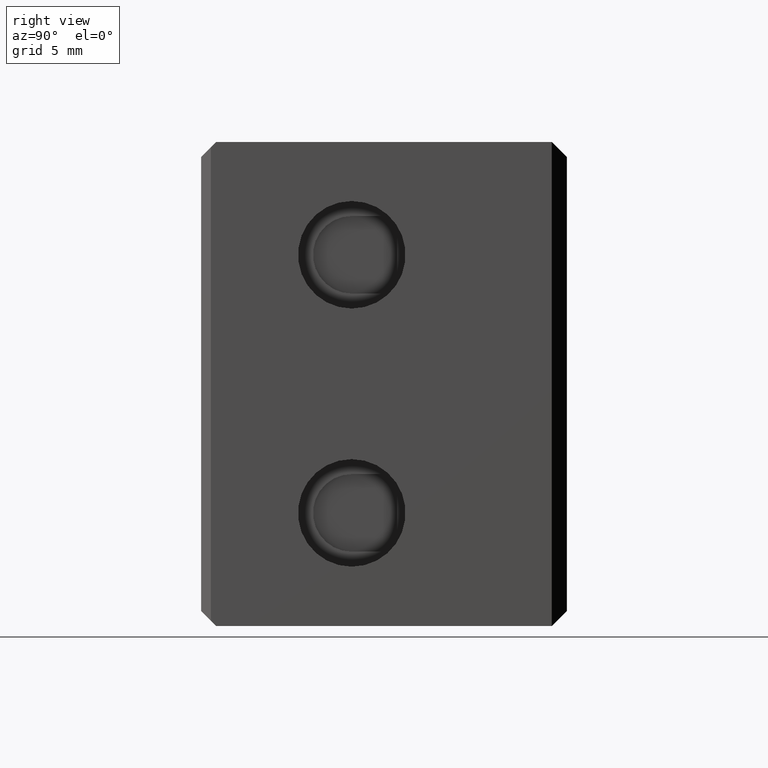
[diagram: clean part render]
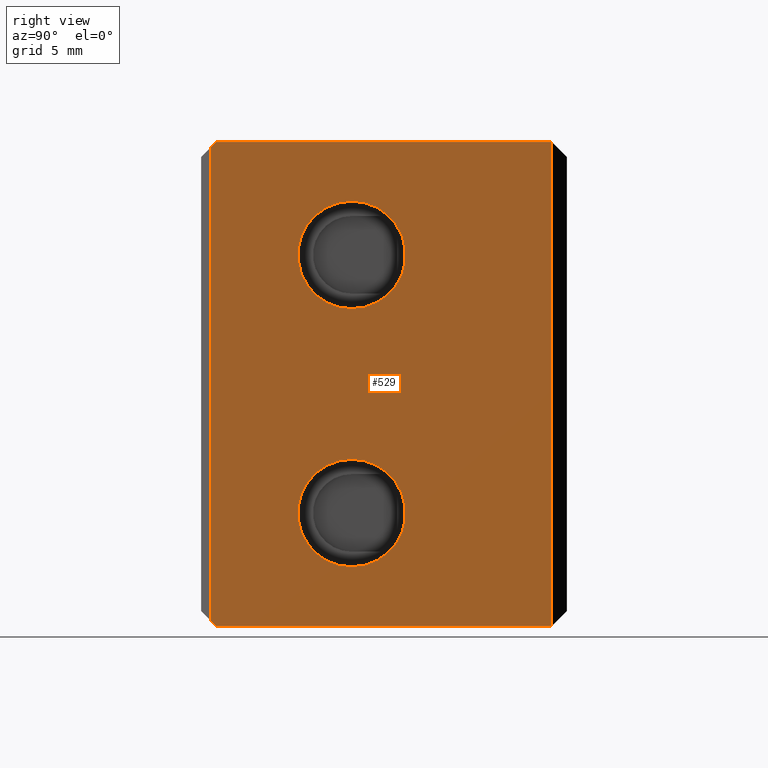
[diagram: same view with one face highlighted and labeled with its STEP entity id]
A machine part, right view. The second image highlights one B-rep face of the part: STEP entity #529.
In plain terms, the highlighted planar face has unit normal (-1, 0, 0).
Its self-contained STEP definition (entity closure, byte-faithful):
#19 = EDGE_CURVE ( 'NONE', #5498, #5480, #4308, .T. ) ;
#63 = EDGE_CURVE ( 'NONE', #5509, #5522, #4377, .T. ) ;
#281 = EDGE_CURVE ( 'NONE', #5480, #5498, #688, .T. ) ;
#305 = EDGE_CURVE ( 'NONE', #5522, #5509, #690, .T. ) ;
#318 = EDGE_CURVE ( 'NONE', #4778, #4815, #2019, .T. ) ;
#364 = EDGE_CURVE ( 'NONE', #4794, #4778, #1124, .T. ) ;
#366 = EDGE_CURVE ( 'NONE', #4840, #4794, #1106, .T. ) ;
#370 = EDGE_CURVE ( 'NONE', #3564, #4815, #1173, .T. ) ;
#382 = EDGE_CURVE ( 'NONE', #3564, #4850, #1162, .T. ) ;
#432 = EDGE_CURVE ( 'NONE', #4850, #4840, #1323, .T. ) ;
#529 = ADVANCED_FACE ( 'NONE', ( #3066, #3050, #3025 ), #3038, .F. ) ;
#688 = CIRCLE ( 'NONE', #700, 2.500000000000000400 ) ;
#690 = CIRCLE ( 'NONE', #698, 2.500000000000000400 ) ;
#698 = AXIS2_PLACEMENT_3D ( 'NONE', #1988, #1992, #1956 ) ;
#700 = AXIS2_PLACEMENT_3D ( 'NONE', #1952, #1951, #1911 ) ;
#718 = VECTOR ( 'NONE', #2026, 1000.000000000000000 ) ;
#732 = VECTOR ( 'NONE', #1120, 1000.000000000000000 ) ;
#738 = VECTOR ( 'NONE', #1180, 999.9999999999998900 ) ;
#749 = VECTOR ( 'NONE', #1153, 1000.000000000000000 ) ;
#782 = VECTOR ( 'NONE', #1114, 999.9999999999998900 ) ;
#902 = VECTOR ( 'NONE', #1359, 1000.000000000000000 ) ;
#934 = AXIS2_PLACEMENT_3D ( 'NONE', #3055, #3032, #3034 ) ;
#1106 = LINE ( 'NONE', #1132, #782 ) ;
#1114 = DIRECTION ( 'NONE',  ( 0.0000000000000000000, 0.7071067811865376900, 0.7071067811865574500 ) ) ;
#1120 = DIRECTION ( 'NONE',  ( -0.0000000000000000000, 1.000000000000000000, 0.0000000000000000000 ) ) ;
#1124 = LINE ( 'NONE', #1129, #732 ) ;
#1129 = CARTESIAN_POINT ( 'NONE',  ( 8.962642282959176800, 4.250000000000000000, 15.76443988491829600 ) ) ;
#1132 = CARTESIAN_POINT ( 'NONE',  ( 8.962642282959176800, 0.4500000000000025100, 15.51443988491828900 ) ) ;
#1153 = DIRECTION ( 'NONE',  ( 0.0000000000000000000, 1.000000000000000000, 0.0000000000000000000 ) ) ;
#1162 = LINE ( 'NONE', #1165, #738 ) ;
#1165 = CARTESIAN_POINT ( 'NONE',  ( 8.962642282959176800, 0.7000000000000027300, -6.735560115114329200 ) ) ;
#1168 = CARTESIAN_POINT ( 'NONE',  ( 8.962642282959176800, 17.00000000000000000, -6.735560115114329200 ) ) ;
#1173 = LINE ( 'NONE', #1168, #749 ) ;
#1180 = DIRECTION ( 'NONE',  ( 0.0000000000000000000, -0.7071067811865489100, 0.7071067811865462400 ) ) ;
#1323 = LINE ( 'NONE', #1355, #902 ) ;
#1355 = CARTESIAN_POINT ( 'NONE',  ( 8.962642282959176800, 0.4500000000000025100, -6.485560115081501200 ) ) ;
#1359 = DIRECTION ( 'NONE',  ( -0.0000000000000000000, 0.0000000000000000000, 1.000000000000000000 ) ) ;
#1911 = DIRECTION ( 'NONE',  ( 0.0000000000000000000, 0.0000000000000000000, 1.000000000000000000 ) ) ;
#1951 = DIRECTION ( 'NONE',  ( 1.000000000000000000, -0.0000000000000000000, -0.0000000000000000000 ) ) ;
#1952 = CARTESIAN_POINT ( 'NONE',  ( 8.962642282959176800, 7.000000000000000000, -1.485560099885221900 ) ) ;
#1956 = DIRECTION ( 'NONE',  ( 0.0000000000000000000, 0.0000000000000000000, 1.000000000000000000 ) ) ;
#1988 = CARTESIAN_POINT ( 'NONE',  ( 8.962642282959176800, 7.000000000000000000, 10.51443990011477900 ) ) ;
#1992 = DIRECTION ( 'NONE',  ( 1.000000000000000000, -0.0000000000000000000, -0.0000000000000000000 ) ) ;
#2019 = LINE ( 'NONE', #2043, #718 ) ;
#2026 = DIRECTION ( 'NONE',  ( -0.0000000000000000000, -0.0000000000000000000, -1.000000000000000000 ) ) ;
#2043 = CARTESIAN_POINT ( 'NONE',  ( 8.962642282959176800, 16.29999999999999400, -6.485560115081501200 ) ) ;
#2578 = CARTESIAN_POINT ( 'NONE',  ( 8.962642282959176800, 0.6999999999958437200, -6.735560115110170700 ) ) ;
#2684 = CARTESIAN_POINT ( 'NONE',  ( 8.962642282957096600, 16.30000000000207500, -6.735560115112249100 ) ) ;
#2687 = CARTESIAN_POINT ( 'NONE',  ( 8.962642282959176800, 0.4500000000000025100, -6.485560115114330100 ) ) ;
#2697 = CARTESIAN_POINT ( 'NONE',  ( 8.962642282959178500, 0.4500000000000034000, 15.51443988491829600 ) ) ;
#2734 = CARTESIAN_POINT ( 'NONE',  ( 8.962642282959176800, 16.29999999999999400, 15.76443988491829600 ) ) ;
#2737 = CARTESIAN_POINT ( 'NONE',  ( 8.962642282959178500, 0.7000000000000029500, 15.76443988491829600 ) ) ;
#2770 = CARTESIAN_POINT ( 'NONE',  ( 8.962642282959176800, 7.000000000000000000, 13.01443990011477900 ) ) ;
#2800 = CARTESIAN_POINT ( 'NONE',  ( 8.962642282959176800, 7.000000000000000000, -3.985560099885222300 ) ) ;
#2841 = CARTESIAN_POINT ( 'NONE',  ( 8.962642282959176800, 7.000000000000000000, 1.014439900114778600 ) ) ;
#2862 = CARTESIAN_POINT ( 'NONE',  ( 8.962642282959176800, 7.000000000000000000, 8.014439900114778600 ) ) ;
#3025 = FACE_BOUND ( 'NONE', #3853, .T. ) ;
#3032 = DIRECTION ( 'NONE',  ( -1.000000000000000000, 0.0000000000000000000, 0.0000000000000000000 ) ) ;
#3034 = DIRECTION ( 'NONE',  ( 0.0000000000000000000, 0.0000000000000000000, 1.000000000000000000 ) ) ;
#3038 = PLANE ( 'NONE',  #934 ) ;
#3050 = FACE_OUTER_BOUND ( 'NONE', #3877, .T. ) ;
#3055 = CARTESIAN_POINT ( 'NONE',  ( 8.962642282959176800, 17.00000000000000000, -6.485560115081501200 ) ) ;
#3066 = FACE_BOUND ( 'NONE', #3858, .T. ) ;
#3564 = VERTEX_POINT ( 'NONE', #2578 ) ;
#3599 = ORIENTED_EDGE ( 'NONE', *, *, #305, .F. ) ;
#3606 = ORIENTED_EDGE ( 'NONE', *, *, #382, .F. ) ;
#3618 = ORIENTED_EDGE ( 'NONE', *, *, #364, .F. ) ;
#3623 = ORIENTED_EDGE ( 'NONE', *, *, #63, .F. ) ;
#3626 = ORIENTED_EDGE ( 'NONE', *, *, #19, .F. ) ;
#3630 = ORIENTED_EDGE ( 'NONE', *, *, #366, .F. ) ;
#3634 = ORIENTED_EDGE ( 'NONE', *, *, #432, .F. ) ;
#3640 = ORIENTED_EDGE ( 'NONE', *, *, #370, .T. ) ;
#3642 = ORIENTED_EDGE ( 'NONE', *, *, #281, .F. ) ;
#3649 = ORIENTED_EDGE ( 'NONE', *, *, #318, .F. ) ;
#3853 = EDGE_LOOP ( 'NONE', ( #3626, #3642 ) ) ;
#3858 = EDGE_LOOP ( 'NONE', ( #3623, #3599 ) ) ;
#3877 = EDGE_LOOP ( 'NONE', ( #3649, #3618, #3630, #3634, #3606, #3640 ) ) ;
#3977 = CARTESIAN_POINT ( 'NONE',  ( 8.962642282959176800, 7.000000000000000000, -1.485560099885221900 ) ) ;
#3983 = DIRECTION ( 'NONE',  ( 1.000000000000000000, -0.0000000000000000000, -0.0000000000000000000 ) ) ;
#4007 = DIRECTION ( 'NONE',  ( 0.0000000000000000000, 0.0000000000000000000, 1.000000000000000000 ) ) ;
#4105 = DIRECTION ( 'NONE',  ( 0.0000000000000000000, 0.0000000000000000000, 1.000000000000000000 ) ) ;
#4117 = CARTESIAN_POINT ( 'NONE',  ( 8.962642282959176800, 7.000000000000000000, 10.51443990011477900 ) ) ;
#4136 = DIRECTION ( 'NONE',  ( 1.000000000000000000, -0.0000000000000000000, -0.0000000000000000000 ) ) ;
#4308 = CIRCLE ( 'NONE', #4312, 2.500000000000000400 ) ;
#4312 = AXIS2_PLACEMENT_3D ( 'NONE', #3977, #3983, #4007 ) ;
#4377 = CIRCLE ( 'NONE', #4396, 2.500000000000000400 ) ;
#4396 = AXIS2_PLACEMENT_3D ( 'NONE', #4117, #4136, #4105 ) ;
#4778 = VERTEX_POINT ( 'NONE', #2734 ) ;
#4794 = VERTEX_POINT ( 'NONE', #2737 ) ;
#4815 = VERTEX_POINT ( 'NONE', #2684 ) ;
#4840 = VERTEX_POINT ( 'NONE', #2697 ) ;
#4850 = VERTEX_POINT ( 'NONE', #2687 ) ;
#5480 = VERTEX_POINT ( 'NONE', #2800 ) ;
#5498 = VERTEX_POINT ( 'NONE', #2841 ) ;
#5509 = VERTEX_POINT ( 'NONE', #2770 ) ;
#5522 = VERTEX_POINT ( 'NONE', #2862 ) ;